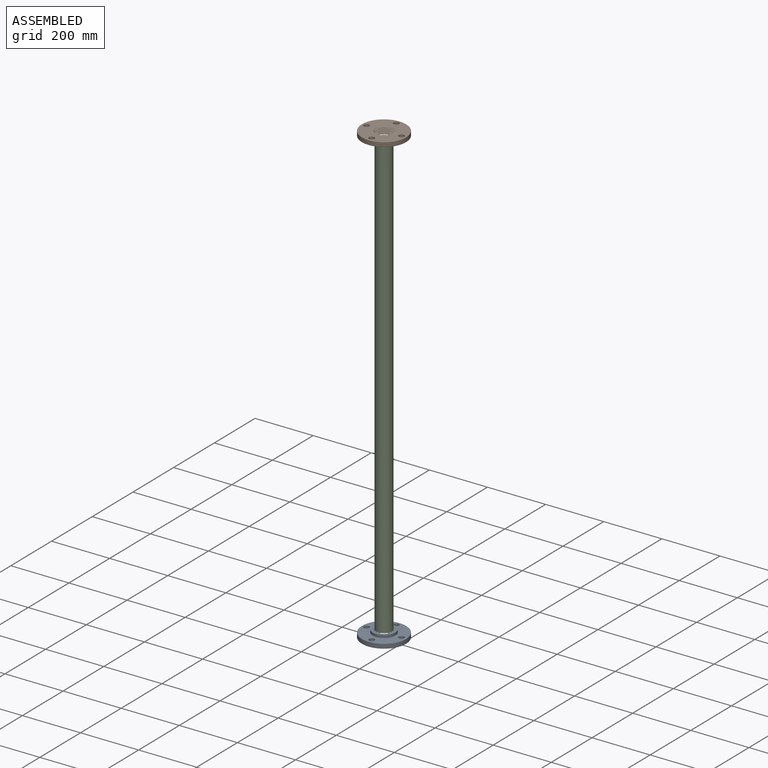
[diagram: assembled view]
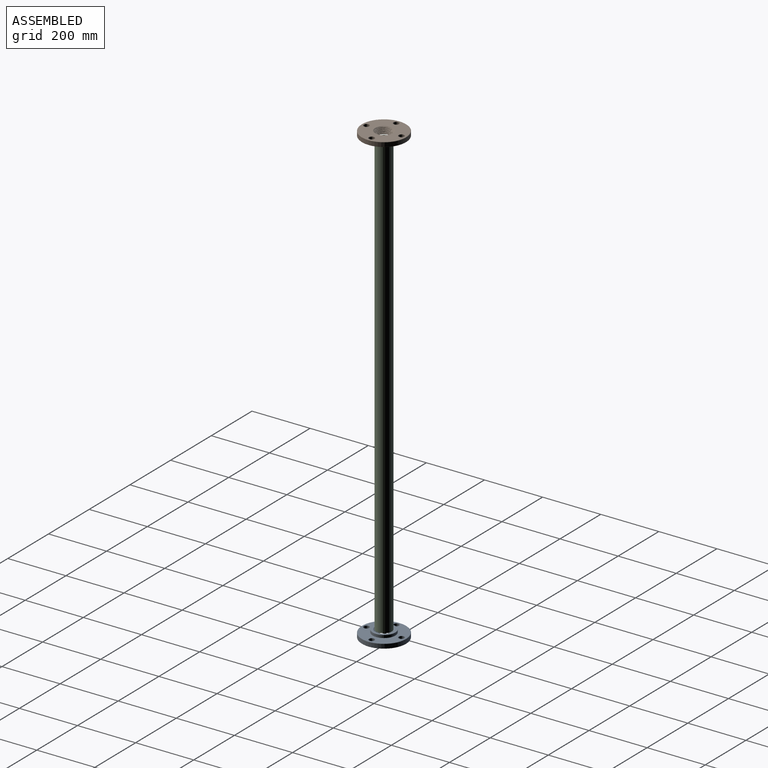
[diagram: assembled view, second angle]
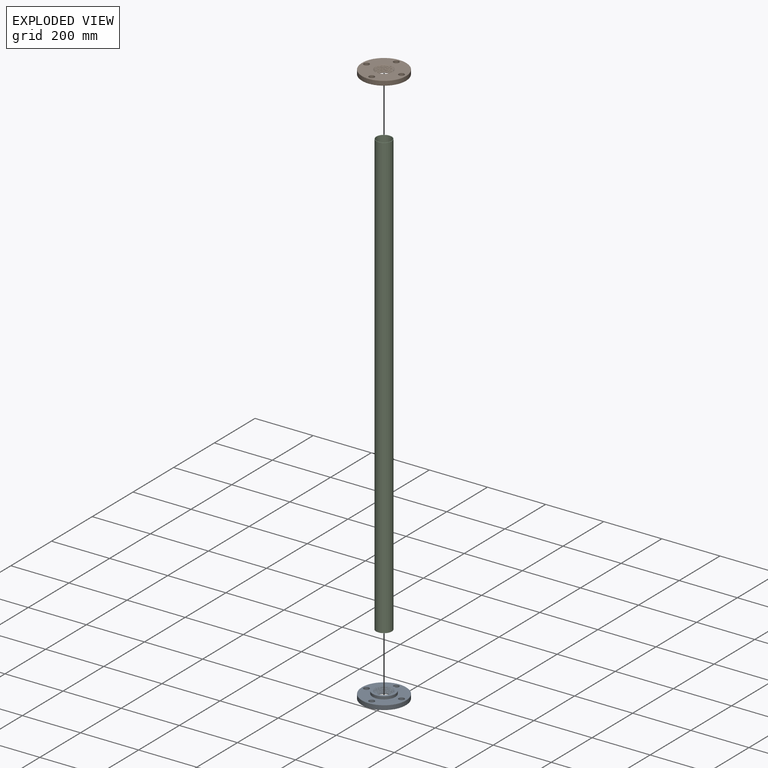
[diagram: exploded view]
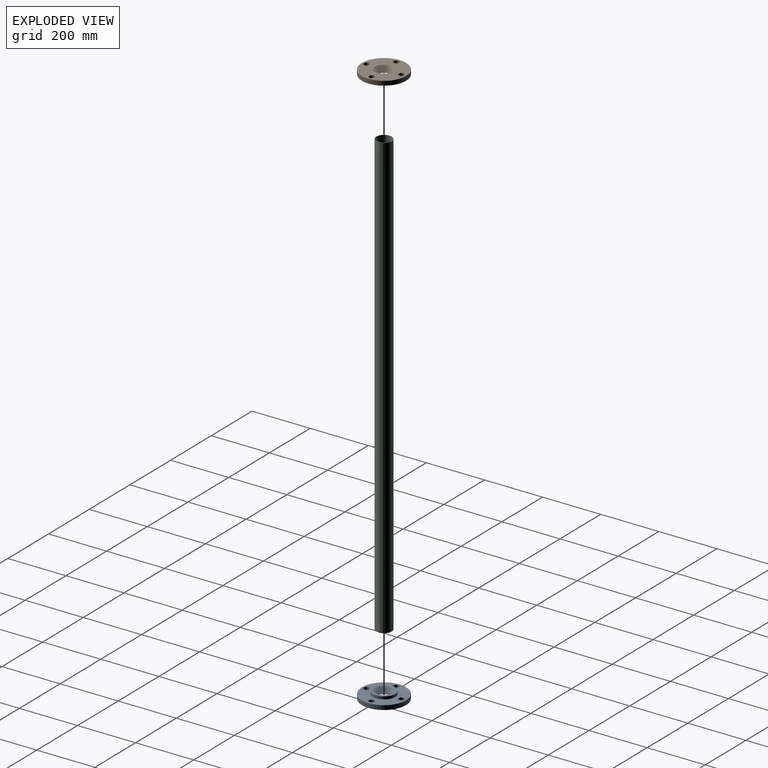
[diagram: exploded view, second angle]
ASSEMBLY  parts=3 mates=2
PART A: 18 faces, bbox 152.4x152.4x28.9 mm
  f0: cone r=30.4mm half-angle=45deg, axis (0,0,1), area 450.6mm2, adj f11,f12,f15,f16,f17
  f1: cone r=30.4mm half-angle=45deg, axis (0,0,-1), area 267.2mm2, adj f2,f11,f13,f15,f16,f17
  f2: cone r=30.4mm half-angle=45deg, axis (0,0,-1), area 1.5mm2, adj f1,f16,f17
  f3: cone r=75.44mm half-angle=45deg, axis (0,0,1), area 513.4mm2, adj f10,f14
  f4: cone r=76.2mm half-angle=45deg, axis (0,0,-1), area 513.4mm2, adj f10,f12
  f5: cylinder r=9.53mm len=19.05mm, axis (0,0,-1), area 950.1mm2, adj f12,f14
  f6: cylinder r=9.53mm len=19.05mm, axis (0,0,-1), area 950.1mm2, adj f12,f14
  f7: cylinder r=9.53mm len=19.05mm, axis (0,0,-1), area 950.1mm2, adj f12,f14
  f8: cylinder r=9.53mm len=19.05mm, axis (0,0,-1), area 950.1mm2, adj f12,f14
  f9: cylinder r=38.86mm len=77.72mm, axis (0,0,1), area 2325.8mm2, adj f13,f14
  f10: cylinder r=76.2mm len=152.4mm, axis (0,0,1), area 6871mm2, adj f3,f4
  f11: cone r=30.16mm half-angle=1.8deg, axis (0,0,-1), area 394.1mm2, adj f0,f1,f15,f16
  f12: plane 150.88x150.88mm, normal (0,0,1), area 13834.7mm2, adj f0,f4,f5,f6,f7,f8
  f13: plane 77.72x77.72mm, normal (0,0,-1), area 1841mm2, adj f1,f9
  f14: plane 150.88x150.88mm, normal (0,0,-1), area 11993.8mm2, adj f3,f5,f6,f7,f8,f9
  f15: bspline ~60.2x59.93mm, area 2057.3mm2, adj f0,f1,f11,f17
  f16: bspline ~59.89x59.34mm, area -159.9mm2, adj f0,f1,f2,f11,f17
  f17: bspline ~55.85x54.76mm, area 471.9mm2, adj f0,f1,f2,f15,f16
PART B: same geometry as A
PART C: 4 faces, bbox 53.9x53.9x1525.2 mm
  f0: cylinder r=25.4mm len=1525.2mm, axis (0,0,1), area 243411.1mm2, adj f2,f3
  f1: cylinder r=26.95mm len=1525.2mm, axis (0,0,1), area 258264.9mm2, adj f2,f3
  f2: plane 53.9x53.9mm, normal (0,0,-1), area 254.9mm2, adj f0,f1
  f3: plane 53.9x53.9mm, normal (0,0,1), area 254.9mm2, adj f0,f1
PLACE A rot(axis=(1,0,0),180deg) t=(0,-165.24,-804.33)mm
PLACE B t=(0,-165.24,771.67)mm
PLACE C t=(0,-165.24,771.67)mm
MATE fastened B.f0 <-> C.f1  axis (0,0,-1) through (0,-165.24,746.27)mm
MATE fastened A.f0 <-> C.f1  axis (0,0,1) through (0,-165.24,-778.93)mm
